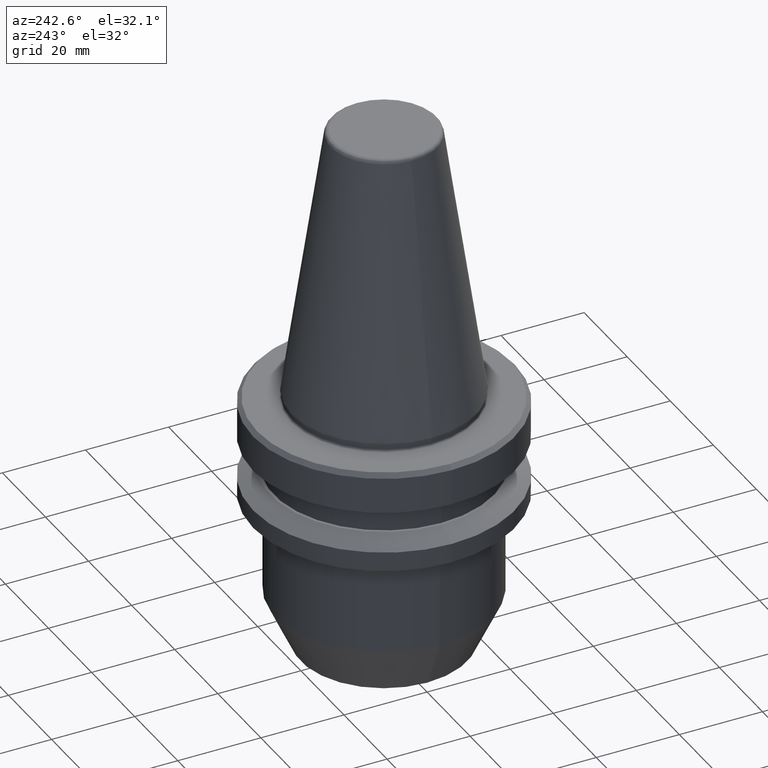
[diagram: clean part render]
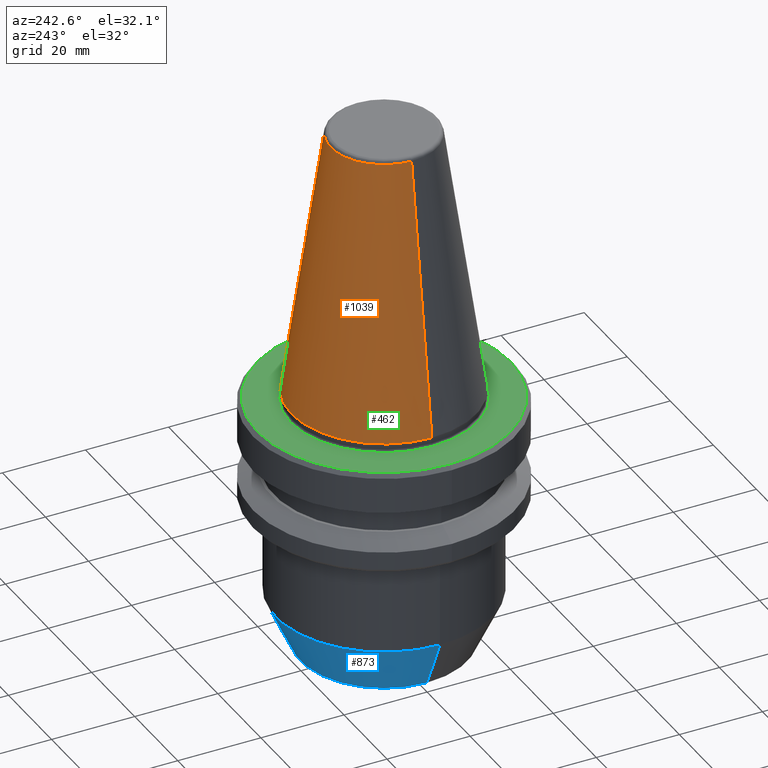
[diagram: same view with three faces highlighted in distinct colors, each labeled with its STEP entity id]
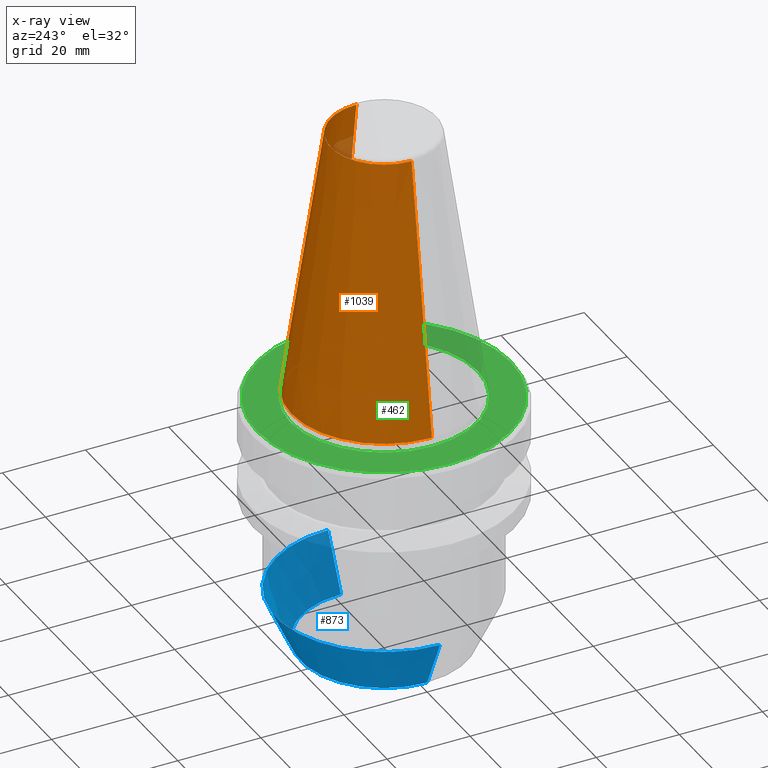
[diagram: x-ray of the same camera — body ghosted, the three highlighted faces saturated]
A machine part, auxiliary view with three faces highlighted in distinct colors.
The next image is the same camera in x-ray (body ghosted, the three faces saturated) — at least one of them is partly hidden behind the body in this view.
Their STEP definitions:

[orange] entity #1039 — the highlighted conical surface has half-angle 8.297 deg.
#38 = EDGE_CURVE ( 'NONE', #1003, #824, #852, .T. ) ;
#42 = ORIENTED_EDGE ( 'NONE', *, *, #679, .T. ) ;
#66 = AXIS2_PLACEMENT_3D ( 'NONE', #901, #165, #962 ) ;
#75 = EDGE_CURVE ( 'NONE', #824, #595, #947, .T. ) ;
#97 = DIRECTION ( 'NONE',  ( -0.0000000000000000000, -0.0000000000000000000, 1.000000000000000000 ) ) ;
#122 = CARTESIAN_POINT ( 'NONE',  ( 12.81220206925713600, 0.0000000000000000000, 65.23302140054848100 ) ) ;
#165 = DIRECTION ( 'NONE',  ( -0.0000000000000000000, -0.0000000000000000000, 1.000000000000000000 ) ) ;
#214 = VERTEX_POINT ( 'NONE', #1047 ) ;
#223 = EDGE_CURVE ( 'NONE', #1003, #214, #388, .T. ) ;
#256 = CONICAL_SURFACE ( 'NONE', #1029, 22.22499999999971700, 0.1448138077623186700 ) ;
#298 = EDGE_LOOP ( 'NONE', ( #877, #609, #42, #565 ) ) ;
#355 = AXIS2_PLACEMENT_3D ( 'NONE', #992, #97, #918 ) ;
#385 = VECTOR ( 'NONE', #580, 999.9999999999998900 ) ;
#388 = LINE ( 'NONE', #1023, #385 ) ;
#466 = CIRCLE ( 'NONE', #66, 22.22499999999971700 ) ;
#474 = DIRECTION ( 'NONE',  ( 0.0000000000000000000, 0.0000000000000000000, -1.000000000000000000 ) ) ;
#565 = ORIENTED_EDGE ( 'NONE', *, *, #75, .F. ) ;
#580 = DIRECTION ( 'NONE',  ( 0.1443081888881784800, 1.767265616126594100E-017, -0.9895327920891828800 ) ) ;
#592 = DIRECTION ( 'NONE',  ( -0.1443081888881784800, 0.0000000000000000000, -0.9895327920891828800 ) ) ;
#595 = VERTEX_POINT ( 'NONE', #1002 ) ;
#609 = ORIENTED_EDGE ( 'NONE', *, *, #223, .T. ) ;
#619 = DIRECTION ( 'NONE',  ( -1.000000000000000000, 0.0000000000000000000, 0.0000000000000000000 ) ) ;
#679 = EDGE_CURVE ( 'NONE', #214, #595, #466, .T. ) ;
#704 = CARTESIAN_POINT ( 'NONE',  ( 0.0000000000000000000, 0.0000000000000000000, 0.6887132116596417200 ) ) ;
#789 = FACE_OUTER_BOUND ( 'NONE', #298, .T. ) ;
#824 = VERTEX_POINT ( 'NONE', #847 ) ;
#840 = CARTESIAN_POINT ( 'NONE',  ( -22.22499999999971700, 0.0000000000000000000, 0.6887132116596417200 ) ) ;
#847 = CARTESIAN_POINT ( 'NONE',  ( -12.81220206925713600, 1.569042225414484800E-015, 65.23302140054848100 ) ) ;
#852 = CIRCLE ( 'NONE', #355, 12.81220206925715000 ) ;
#877 = ORIENTED_EDGE ( 'NONE', *, *, #38, .F. ) ;
#901 = CARTESIAN_POINT ( 'NONE',  ( 0.0000000000000000000, 0.0000000000000000000, 0.6887132116596417200 ) ) ;
#916 = VECTOR ( 'NONE', #592, 999.9999999999998900 ) ;
#918 = DIRECTION ( 'NONE',  ( 1.000000000000000000, 0.0000000000000000000, 0.0000000000000000000 ) ) ;
#947 = LINE ( 'NONE', #840, #916 ) ;
#962 = DIRECTION ( 'NONE',  ( 1.000000000000000000, 0.0000000000000000000, 0.0000000000000000000 ) ) ;
#992 = CARTESIAN_POINT ( 'NONE',  ( 0.0000000000000000000, 0.0000000000000000000, 65.23302140054848100 ) ) ;
#1002 = CARTESIAN_POINT ( 'NONE',  ( -22.22499999999971700, 2.721777511104957700E-015, 0.6887132116596417200 ) ) ;
#1003 = VERTEX_POINT ( 'NONE', #122 ) ;
#1023 = CARTESIAN_POINT ( 'NONE',  ( 22.22499999999971700, 2.721777511104957700E-015, 0.6887132116596417200 ) ) ;
#1029 = AXIS2_PLACEMENT_3D ( 'NONE', #704, #474, #619 ) ;
#1039 = ADVANCED_FACE ( 'NONE', ( #789 ), #256, .T. ) ;
#1047 = CARTESIAN_POINT ( 'NONE',  ( 22.22499999999971700, 0.0000000000000000000, 0.6887132116596417200 ) ) ;

[blue] entity #873 — the highlighted conical surface has half-angle 25 deg.
#44 = CARTESIAN_POINT ( 'NONE',  ( 0.0000000000000000000, 0.0000000000000000000, -62.31128678834036100 ) ) ;
#85 = DIRECTION ( 'NONE',  ( -0.0000000000000000000, -0.0000000000000000000, 1.000000000000000000 ) ) ;
#139 = DIRECTION ( 'NONE',  ( -0.0000000000000000000, -0.0000000000000000000, 1.000000000000000000 ) ) ;
#151 = VECTOR ( 'NONE', #467, 1000.000000000000100 ) ;
#154 = LINE ( 'NONE', #807, #837 ) ;
#215 = CARTESIAN_POINT ( 'NONE',  ( 0.0000000000000000000, 0.0000000000000000000, -62.31128678834036100 ) ) ;
#261 = CARTESIAN_POINT ( 'NONE',  ( -20.00000000000000000, 2.449293598294706500E-015, -62.31128678834036100 ) ) ;
#266 = CONICAL_SURFACE ( 'NONE', #645, 20.00000000000000000, 0.4363323129985759400 ) ;
#276 = AXIS2_PLACEMENT_3D ( 'NONE', #1015, #553, #582 ) ;
#285 = AXIS2_PLACEMENT_3D ( 'NONE', #215, #85, #1044 ) ;
#332 = CARTESIAN_POINT ( 'NONE',  ( 26.00000000000000000, 0.0000000000000000000, -49.44424526528279500 ) ) ;
#335 = DIRECTION ( 'NONE',  ( 1.000000000000000000, 0.0000000000000000000, 0.0000000000000000000 ) ) ;
#366 = EDGE_CURVE ( 'NONE', #425, #405, #373, .T. ) ;
#369 = EDGE_CURVE ( 'NONE', #405, #710, #844, .T. ) ;
#373 = CIRCLE ( 'NONE', #285, 20.00000000000000000 ) ;
#405 = VERTEX_POINT ( 'NONE', #455 ) ;
#418 = EDGE_CURVE ( 'NONE', #906, #710, #453, .T. ) ;
#425 = VERTEX_POINT ( 'NONE', #765 ) ;
#453 = CIRCLE ( 'NONE', #276, 26.00000000000000000 ) ;
#455 = CARTESIAN_POINT ( 'NONE',  ( -20.00000000000000000, 2.816687638038912400E-015, -62.31128678834036100 ) ) ;
#467 = DIRECTION ( 'NONE',  ( -0.4226182617406936100, 5.175581015019586700E-017, 0.9063077870366526000 ) ) ;
#479 = CARTESIAN_POINT ( 'NONE',  ( -26.00000000000000000, 3.184081677783118200E-015, -49.44424526528279500 ) ) ;
#512 = ORIENTED_EDGE ( 'NONE', *, *, #366, .T. ) ;
#553 = DIRECTION ( 'NONE',  ( -0.0000000000000000000, -0.0000000000000000000, 1.000000000000000000 ) ) ;
#582 = DIRECTION ( 'NONE',  ( 1.000000000000000000, 0.0000000000000000000, 0.0000000000000000000 ) ) ;
#602 = FACE_OUTER_BOUND ( 'NONE', #769, .T. ) ;
#645 = AXIS2_PLACEMENT_3D ( 'NONE', #44, #139, #335 ) ;
#646 = DIRECTION ( 'NONE',  ( 0.4226182617406936100, 0.0000000000000000000, 0.9063077870366526000 ) ) ;
#671 = ORIENTED_EDGE ( 'NONE', *, *, #780, .F. ) ;
#710 = VERTEX_POINT ( 'NONE', #479 ) ;
#765 = CARTESIAN_POINT ( 'NONE',  ( 20.00000000000000000, 0.0000000000000000000, -62.31128678834036100 ) ) ;
#769 = EDGE_LOOP ( 'NONE', ( #512, #836, #1028, #671 ) ) ;
#780 = EDGE_CURVE ( 'NONE', #425, #906, #154, .T. ) ;
#807 = CARTESIAN_POINT ( 'NONE',  ( 20.00000000000000000, 0.0000000000000000000, -62.31128678834036100 ) ) ;
#836 = ORIENTED_EDGE ( 'NONE', *, *, #369, .T. ) ;
#837 = VECTOR ( 'NONE', #646, 1000.000000000000100 ) ;
#844 = LINE ( 'NONE', #261, #151 ) ;
#873 = ADVANCED_FACE ( 'NONE', ( #602 ), #266, .T. ) ;
#906 = VERTEX_POINT ( 'NONE', #332 ) ;
#1015 = CARTESIAN_POINT ( 'NONE',  ( 0.0000000000000000000, 0.0000000000000000000, -49.44424526528279500 ) ) ;
#1028 = ORIENTED_EDGE ( 'NONE', *, *, #418, .F. ) ;
#1044 = DIRECTION ( 'NONE',  ( 1.000000000000000000, 0.0000000000000000000, 0.0000000000000000000 ) ) ;

[green] entity #462 — the highlighted planar face has unit normal (0, 0, -1).
#18 = DIRECTION ( 'NONE',  ( -0.0000000000000000000, -0.0000000000000000000, 1.000000000000000000 ) ) ;
#28 = AXIS2_PLACEMENT_3D ( 'NONE', #790, #717, #944 ) ;
#45 = EDGE_CURVE ( 'NONE', #300, #859, #509, .T. ) ;
#71 = EDGE_CURVE ( 'NONE', #356, #577, #982, .T. ) ;
#90 = DIRECTION ( 'NONE',  ( 1.000000000000000000, 0.0000000000000000000, 0.0000000000000000000 ) ) ;
#161 = CARTESIAN_POINT ( 'NONE',  ( -22.49999999999985400, 2.755455298081526600E-015, -1.311286788340096300 ) ) ;
#163 = ORIENTED_EDGE ( 'NONE', *, *, #71, .F. ) ;
#184 = FACE_BOUND ( 'NONE', #305, .T. ) ;
#225 = CARTESIAN_POINT ( 'NONE',  ( 22.49999999999985400, 0.0000000000000000000, -1.311286788340096300 ) ) ;
#229 = CIRCLE ( 'NONE', #28, 30.49999999999986100 ) ;
#238 = DIRECTION ( 'NONE',  ( 0.0000000000000000000, 0.0000000000000000000, -1.000000000000000000 ) ) ;
#245 = DIRECTION ( 'NONE',  ( 1.000000000000000000, 0.0000000000000000000, 0.0000000000000000000 ) ) ;
#249 = CIRCLE ( 'NONE', #273, 22.49999999999985400 ) ;
#272 = DIRECTION ( 'NONE',  ( -1.000000000000000000, 0.0000000000000000000, -0.0000000000000000000 ) ) ;
#273 = AXIS2_PLACEMENT_3D ( 'NONE', #791, #18, #245 ) ;
#300 = VERTEX_POINT ( 'NONE', #728 ) ;
#305 = EDGE_LOOP ( 'NONE', ( #163, #391 ) ) ;
#348 = AXIS2_PLACEMENT_3D ( 'NONE', #920, #917, #90 ) ;
#352 = AXIS2_PLACEMENT_3D ( 'NONE', #454, #986, #519 ) ;
#356 = VERTEX_POINT ( 'NONE', #225 ) ;
#383 = AXIS2_PLACEMENT_3D ( 'NONE', #716, #238, #272 ) ;
#391 = ORIENTED_EDGE ( 'NONE', *, *, #456, .F. ) ;
#424 = ORIENTED_EDGE ( 'NONE', *, *, #729, .T. ) ;
#429 = FACE_OUTER_BOUND ( 'NONE', #463, .T. ) ;
#454 = CARTESIAN_POINT ( 'NONE',  ( 0.0000000000000000000, 0.0000000000000000000, -1.311286788340082500 ) ) ;
#456 = EDGE_CURVE ( 'NONE', #577, #356, #249, .T. ) ;
#462 = ADVANCED_FACE ( 'NONE', ( #184, #429 ), #855, .F. ) ;
#463 = EDGE_LOOP ( 'NONE', ( #838, #424 ) ) ;
#509 = CIRCLE ( 'NONE', #352, 30.49999999999986100 ) ;
#519 = DIRECTION ( 'NONE',  ( 1.000000000000000000, 0.0000000000000000000, 0.0000000000000000000 ) ) ;
#577 = VERTEX_POINT ( 'NONE', #161 ) ;
#716 = CARTESIAN_POINT ( 'NONE',  ( 0.0000000000000000000, 30.49999999999986100, -1.311286788340082500 ) ) ;
#717 = DIRECTION ( 'NONE',  ( -0.0000000000000000000, -0.0000000000000000000, 1.000000000000000000 ) ) ;
#728 = CARTESIAN_POINT ( 'NONE',  ( -30.49999999999986100, 0.0000000000000000000, -1.311286788340082500 ) ) ;
#729 = EDGE_CURVE ( 'NONE', #859, #300, #229, .T. ) ;
#790 = CARTESIAN_POINT ( 'NONE',  ( 0.0000000000000000000, 0.0000000000000000000, -1.311286788340082500 ) ) ;
#791 = CARTESIAN_POINT ( 'NONE',  ( 0.0000000000000000000, 0.0000000000000000000, -1.311286788340082500 ) ) ;
#838 = ORIENTED_EDGE ( 'NONE', *, *, #45, .T. ) ;
#855 = PLANE ( 'NONE',  #383 ) ;
#859 = VERTEX_POINT ( 'NONE', #953 ) ;
#917 = DIRECTION ( 'NONE',  ( -0.0000000000000000000, -0.0000000000000000000, 1.000000000000000000 ) ) ;
#920 = CARTESIAN_POINT ( 'NONE',  ( 0.0000000000000000000, 0.0000000000000000000, -1.311286788340082500 ) ) ;
#944 = DIRECTION ( 'NONE',  ( 1.000000000000000000, 0.0000000000000000000, 0.0000000000000000000 ) ) ;
#953 = CARTESIAN_POINT ( 'NONE',  ( 30.49999999999986100, 3.796405077356777800E-015, -1.311286788340082500 ) ) ;
#982 = CIRCLE ( 'NONE', #348, 22.49999999999985400 ) ;
#986 = DIRECTION ( 'NONE',  ( -0.0000000000000000000, -0.0000000000000000000, 1.000000000000000000 ) ) ;